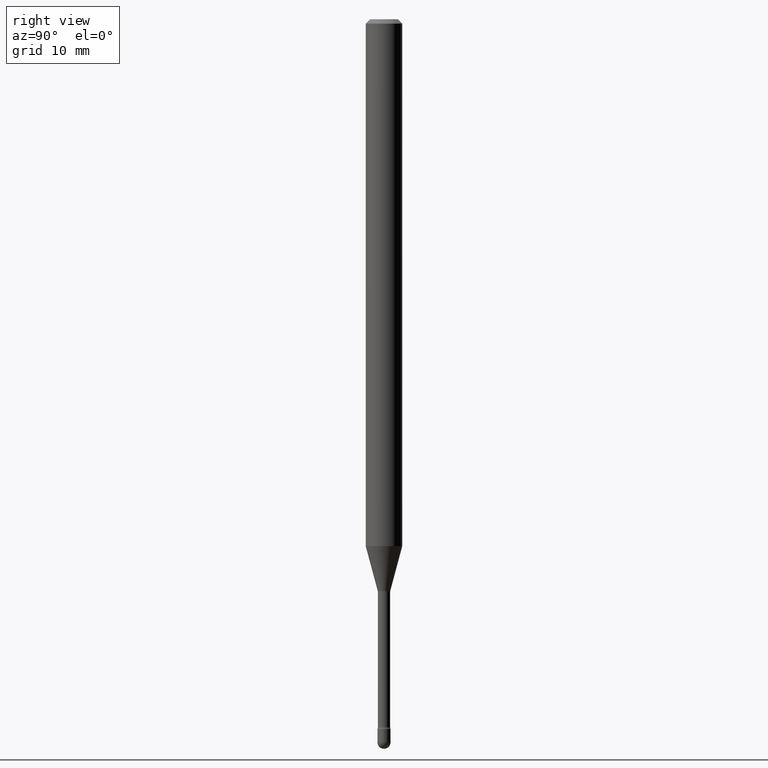
[diagram: clean part render]
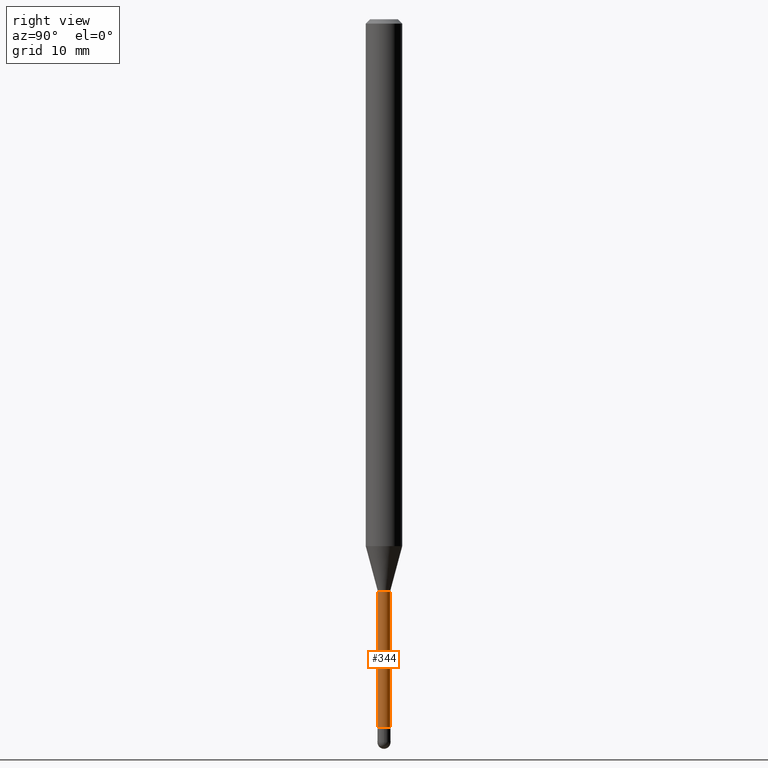
[diagram: same view with one face highlighted and labeled with its STEP entity id]
A machine part, right view. The second image highlights one B-rep face of the part: STEP entity #344.
In plain terms, the highlighted cylindrical surface (edge-blend (fillet) strip) has radius 0.5372 mm, axis along (-0, 0, 1).
Its self-contained STEP definition (entity closure, byte-faithful):
#19 = EDGE_CURVE ( 'NONE', #378, #369, #364, .T. ) ;
#34 = AXIS2_PLACEMENT_3D ( 'NONE', #290, #546, #491 ) ;
#37 = DIRECTION ( 'NONE',  ( -2.445426571026095552E-29, 3.491541821994768116E-15, 1.000000000000000000 ) ) ;
#39 = ORIENTED_EDGE ( 'NONE', *, *, #275, .F. ) ;
#45 = LINE ( 'NONE', #125, #94 ) ;
#63 = AXIS2_PLACEMENT_3D ( 'NONE', #143, #434, #322 ) ;
#88 = DIRECTION ( 'NONE',  ( -6.982962677686266711E-15, -1.000000000000000000, 0.000000000000000000 ) ) ;
#94 = VECTOR ( 'NONE', #37, 39.37007874015748143 ) ;
#102 = AXIS2_PLACEMENT_3D ( 'NONE', #291, #462, #88 ) ;
#125 = CARTESIAN_POINT ( 'NONE',  ( 1.502797886132613524E-16, 0.02115000000000002642, 4.042272893560565981E-16 ) ) ;
#143 = CARTESIAN_POINT ( 'NONE',  ( -1.169113584055446105E-44, 1.669184350826100908E-30, 4.780733988912460139E-16 ) ) ;
#144 = VERTEX_POINT ( 'NONE', #171 ) ;
#171 = CARTESIAN_POINT ( 'NONE',  ( 1.550759520797014538E-16, 0.02114999999999158178, -2.425780876267511932 ) ) ;
#228 = CYLINDRICAL_SURFACE ( 'NONE', #63, 0.02115000000000002642 ) ;
#232 = VECTOR ( 'NONE', #537, 39.37007874015748143 ) ;
#243 = CARTESIAN_POINT ( 'NONE',  ( -1.476896606330055594E-16, -0.02115000000000851962, -2.425780876267511932 ) ) ;
#275 = EDGE_CURVE ( 'NONE', #427, #378, #361, .T. ) ;
#276 = CARTESIAN_POINT ( 'NONE',  ( 1.502797886133206648E-16, 0.02114999999999315344, -1.961974787463811154 ) ) ;
#290 = CARTESIAN_POINT ( 'NONE',  ( 4.797865276947280430E-29, -6.850317024129193206E-15, -1.961974787463811154 ) ) ;
#291 = CARTESIAN_POINT ( 'NONE',  ( 5.932069010311539721E-29, -8.469715380483133071E-15, -2.425780876267511932 ) ) ;
#309 = CARTESIAN_POINT ( 'NONE',  ( -1.476896606330165788E-16, -0.02115000000000685429, -1.961974787463811154 ) ) ;
#322 = DIRECTION ( 'NONE',  ( -6.982962677686266711E-15, -1.000000000000000000, 3.491541821994766539E-15 ) ) ;
#334 = EDGE_CURVE ( 'NONE', #427, #144, #343, .T. ) ;
#343 = CIRCLE ( 'NONE', #102, 0.02115000000000005070 ) ;
#344 = ADVANCED_FACE ( 'NONE', ( #360 ), #228, .T. ) ;
#360 = FACE_OUTER_BOUND ( 'NONE', #373, .T. ) ;
#361 = LINE ( 'NONE', #363, #232 ) ;
#363 = CARTESIAN_POINT ( 'NONE',  ( -1.476896606330647239E-16, -0.02115000000000002642, 5.519195084264354791E-16 ) ) ;
#364 = CIRCLE ( 'NONE', #34, 0.02115000000000000560 ) ;
#369 = VERTEX_POINT ( 'NONE', #276 ) ;
#373 = EDGE_LOOP ( 'NONE', ( #525, #379, #558, #39 ) ) ;
#378 = VERTEX_POINT ( 'NONE', #309 ) ;
#379 = ORIENTED_EDGE ( 'NONE', *, *, #433, .T. ) ;
#427 = VERTEX_POINT ( 'NONE', #243 ) ;
#433 = EDGE_CURVE ( 'NONE', #144, #369, #45, .T. ) ;
#434 = DIRECTION ( 'NONE',  ( -2.445426571026095552E-29, 3.491541821994768116E-15, 1.000000000000000000 ) ) ;
#462 = DIRECTION ( 'NONE',  ( -2.445426571026095552E-29, 3.491541821994768116E-15, 1.000000000000000000 ) ) ;
#491 = DIRECTION ( 'NONE',  ( -6.982962677686265133E-15, -1.000000000000000000, 0.000000000000000000 ) ) ;
#525 = ORIENTED_EDGE ( 'NONE', *, *, #334, .T. ) ;
#537 = DIRECTION ( 'NONE',  ( -2.445426571026095552E-29, 3.491541821994768116E-15, 1.000000000000000000 ) ) ;
#546 = DIRECTION ( 'NONE',  ( -2.445426571026095552E-29, 3.491541821994768116E-15, 1.000000000000000000 ) ) ;
#558 = ORIENTED_EDGE ( 'NONE', *, *, #19, .F. ) ;